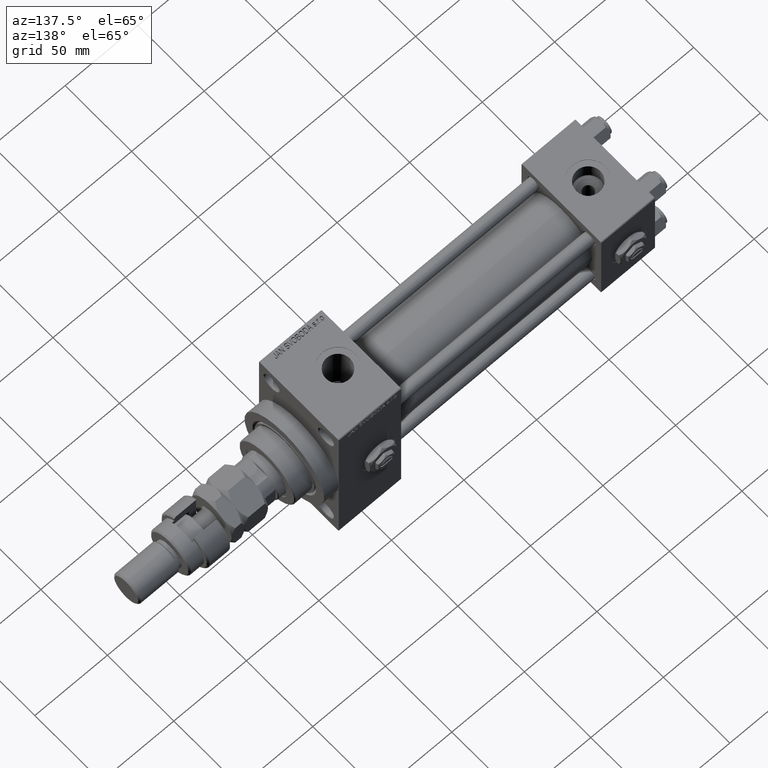
[diagram: clean part render]
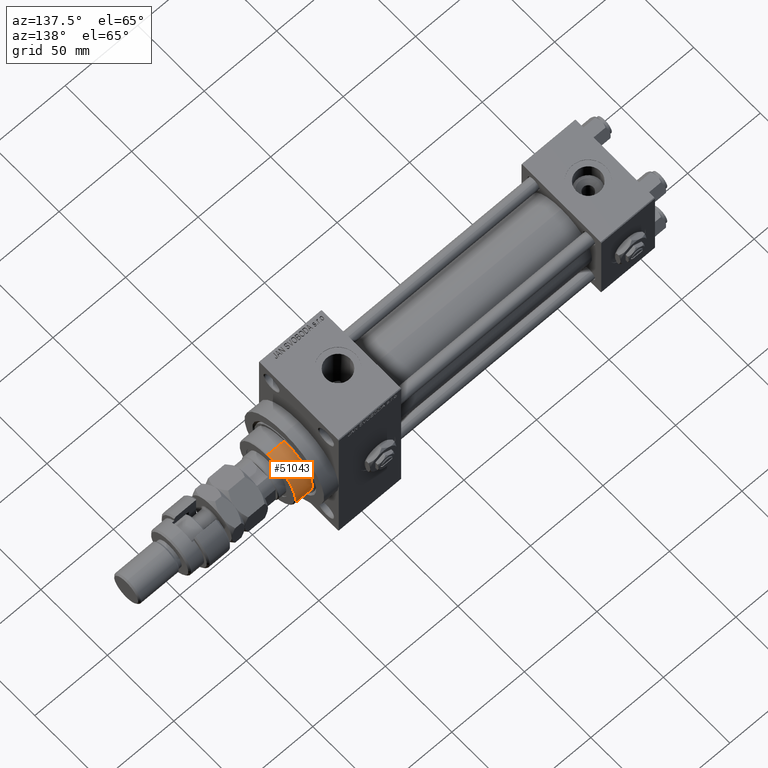
[diagram: same view with one face highlighted and labeled with its STEP entity id]
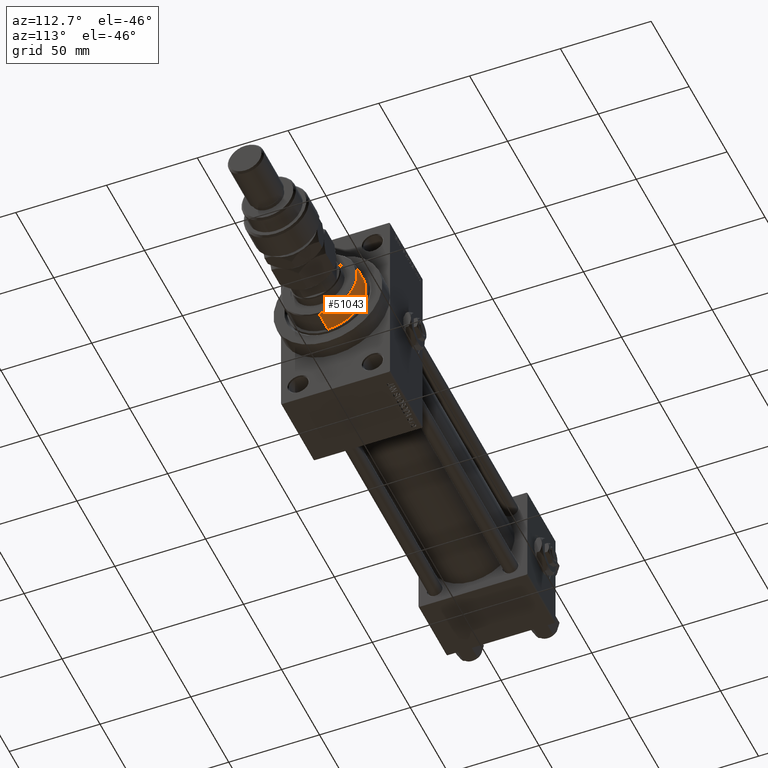
[diagram: same view with one face highlighted and labeled with its STEP entity id]
A machine part, auxiliary view. The second image highlights one B-rep face of the part: STEP entity #51043.
A second angle (auxiliary view) of the same face is appended — the face is thin or edge-on in the first view.
In plain terms, the highlighted cylindrical surface (partial cylindrical patch) has radius 21 mm, axis along (-1, 0, 0).
Its self-contained STEP definition (entity closure, byte-faithful):
#485 = LINE ( 'NONE', #52219, #11765 ) ;
#490 = DIRECTION ( 'NONE',  ( -1.000000000000000000, 0.000000000000000000, 0.000000000000000000 ) ) ;
#1267 = CARTESIAN_POINT ( 'NONE',  ( -21.00000000000000000, 0.000000000000000000, 54.75999999999999091 ) ) ;
#1309 = ORIENTED_EDGE ( 'NONE', *, *, #41583, .F. ) ;
#3432 = DIRECTION ( 'NONE',  ( 0.000000000000000000, 0.000000000000000000, -1.000000000000000000 ) ) ;
#4485 = CARTESIAN_POINT ( 'NONE',  ( 0.000000000000000000, 0.000000000000000000, 55.26000000000000512 ) ) ;
#4684 = DIRECTION ( 'NONE',  ( 0.000000000000000000, 0.000000000000000000, 1.000000000000000000 ) ) ;
#5650 = EDGE_CURVE ( 'NONE', #15789, #8320, #34711, .T. ) ;
#5651 = DIRECTION ( 'NONE',  ( 0.000000000000000000, 0.000000000000000000, 1.000000000000000000 ) ) ;
#5916 = CARTESIAN_POINT ( 'NONE',  ( 21.00000000000000000, 2.571758278209441661E-15, 55.26000000000000512 ) ) ;
#7209 = ORIENTED_EDGE ( 'NONE', *, *, #5650, .T. ) ;
#8320 = VERTEX_POINT ( 'NONE', #12107 ) ;
#8363 = CIRCLE ( 'NONE', #42217, 21.00000000000000000 ) ;
#11765 = VECTOR ( 'NONE', #28615, 1000.000000000000000 ) ;
#12107 = CARTESIAN_POINT ( 'NONE',  ( -20.96385542168674831, -1.231570484631387741, 43.25999999999999801 ) ) ;
#12598 = VECTOR ( 'NONE', #30304, 1000.000000000000000 ) ;
#15403 = CARTESIAN_POINT ( 'NONE',  ( 0.000000000000000000, 0.000000000000000000, 43.25999999999999801 ) ) ;
#15789 = VERTEX_POINT ( 'NONE', #30809 ) ;
#16176 = CYLINDRICAL_SURFACE ( 'NONE', #48425, 21.00000000000000000 ) ;
#16319 = ORIENTED_EDGE ( 'NONE', *, *, #41073, .T. ) ;
#17065 = CARTESIAN_POINT ( 'NONE',  ( 20.96385542168674831, -1.231570484631382412, 43.25999999999999801 ) ) ;
#17151 = ORIENTED_EDGE ( 'NONE', *, *, #30290, .T. ) ;
#17237 = DIRECTION ( 'NONE',  ( 1.000000000000000000, 0.000000000000000000, 0.000000000000000000 ) ) ;
#17460 = VERTEX_POINT ( 'NONE', #51184 ) ;
#18517 = CIRCLE ( 'NONE', #47252, 21.00000000000000000 ) ;
#19564 = CARTESIAN_POINT ( 'NONE',  ( 21.00000000000000000, 2.571758278209441661E-15, 43.25999999999999801 ) ) ;
#19628 = DIRECTION ( 'NONE',  ( 1.000000000000000000, 0.000000000000000000, 0.000000000000000000 ) ) ;
#27827 = ORIENTED_EDGE ( 'NONE', *, *, #41538, .T. ) ;
#27950 = AXIS2_PLACEMENT_3D ( 'NONE', #15403, #4684, #37287 ) ;
#28615 = DIRECTION ( 'NONE',  ( -0.000000000000000000, -0.000000000000000000, -1.000000000000000000 ) ) ;
#28892 = DIRECTION ( 'NONE',  ( 0.000000000000000000, 0.000000000000000000, 1.000000000000000000 ) ) ;
#30290 = EDGE_CURVE ( 'NONE', #39685, #48135, #8363, .T. ) ;
#30304 = DIRECTION ( 'NONE',  ( -0.000000000000000000, -0.000000000000000000, -1.000000000000000000 ) ) ;
#30809 = CARTESIAN_POINT ( 'NONE',  ( -21.00000000000000000, 0.000000000000000000, 43.25999999999999801 ) ) ;
#31289 = FACE_OUTER_BOUND ( 'NONE', #49734, .T. ) ;
#34711 = CIRCLE ( 'NONE', #27950, 21.00000000000000000 ) ;
#35358 = VERTEX_POINT ( 'NONE', #1267 ) ;
#37287 = DIRECTION ( 'NONE',  ( 1.000000000000000000, 0.000000000000000000, 0.000000000000000000 ) ) ;
#37617 = CARTESIAN_POINT ( 'NONE',  ( 0.000000000000000000, 0.000000000000000000, 43.25999999999999801 ) ) ;
#37973 = CIRCLE ( 'NONE', #43920, 21.00000000000000000 ) ;
#37991 = DIRECTION ( 'NONE',  ( 1.000000000000000000, 0.000000000000000000, 0.000000000000000000 ) ) ;
#39685 = VERTEX_POINT ( 'NONE', #17065 ) ;
#39748 = CARTESIAN_POINT ( 'NONE',  ( 0.000000000000000000, 0.000000000000000000, 54.75999999999999091 ) ) ;
#39995 = EDGE_CURVE ( 'NONE', #17460, #35358, #18517, .T. ) ;
#41073 = EDGE_CURVE ( 'NONE', #35358, #15789, #485, .T. ) ;
#41538 = EDGE_CURVE ( 'NONE', #8320, #39685, #37973, .T. ) ;
#41583 = EDGE_CURVE ( 'NONE', #17460, #48135, #46212, .T. ) ;
#41950 = CARTESIAN_POINT ( 'NONE',  ( 0.000000000000000000, 0.000000000000000000, 43.25999999999999801 ) ) ;
#42217 = AXIS2_PLACEMENT_3D ( 'NONE', #37617, #28892, #17237 ) ;
#43920 = AXIS2_PLACEMENT_3D ( 'NONE', #41950, #5651, #37991 ) ;
#45470 = ORIENTED_EDGE ( 'NONE', *, *, #39995, .T. ) ;
#46212 = LINE ( 'NONE', #5916, #12598 ) ;
#47252 = AXIS2_PLACEMENT_3D ( 'NONE', #39748, #3432, #19628 ) ;
#48135 = VERTEX_POINT ( 'NONE', #19564 ) ;
#48425 = AXIS2_PLACEMENT_3D ( 'NONE', #4485, #48768, #490 ) ;
#48768 = DIRECTION ( 'NONE',  ( -0.000000000000000000, -0.000000000000000000, -1.000000000000000000 ) ) ;
#49734 = EDGE_LOOP ( 'NONE', ( #1309, #45470, #16319, #7209, #27827, #17151 ) ) ;
#51043 = ADVANCED_FACE ( 'NONE', ( #31289 ), #16176, .T. ) ;
#51184 = CARTESIAN_POINT ( 'NONE',  ( 21.00000000000000000, 2.571758278209441661E-15, 54.75999999999999091 ) ) ;
#52219 = CARTESIAN_POINT ( 'NONE',  ( -21.00000000000000000, 0.000000000000000000, 55.26000000000000512 ) ) ;